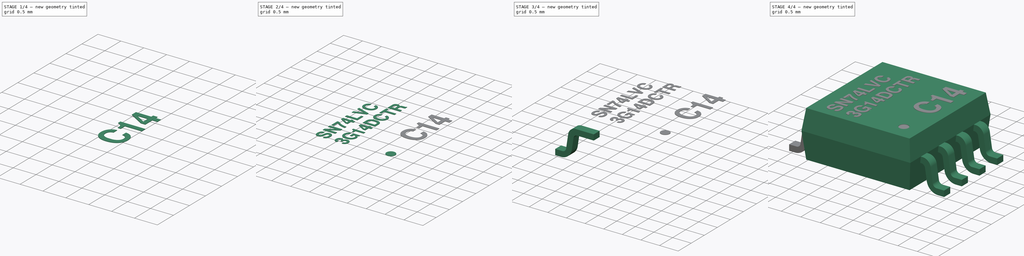
[diagram: build sequence overview — one tinted view per stage of 4, left to right]
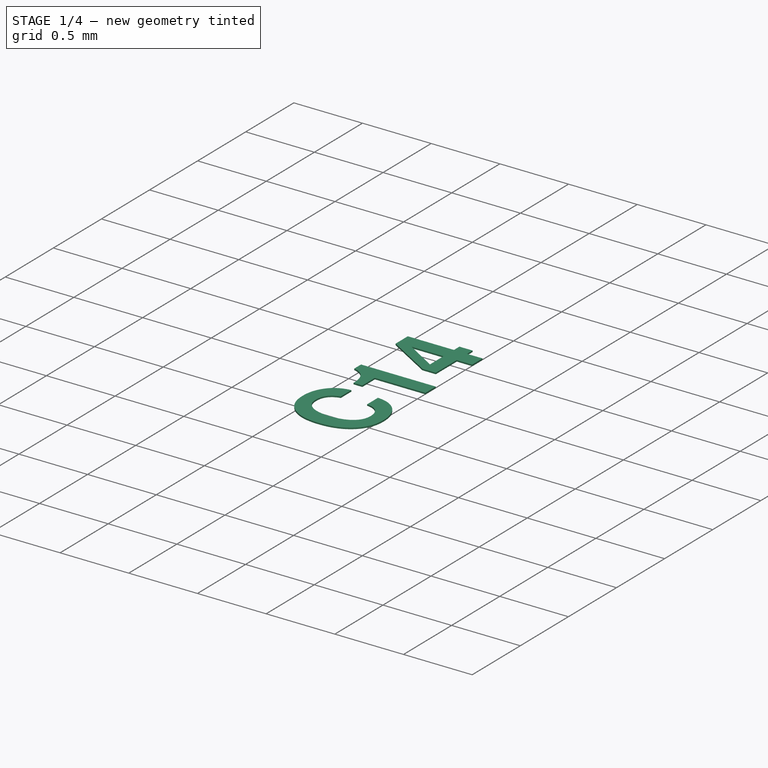
[diagram: stage 1 of 4 — iso view after this stage's code; geometry added in this stage tinted green]
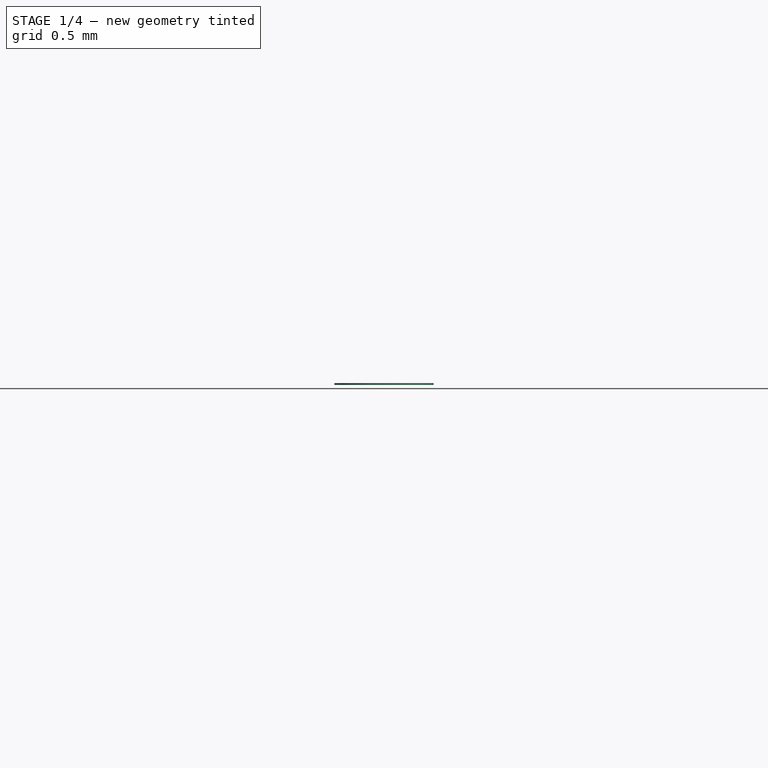
[diagram: stage 1 of 4 — front view after this stage's code; geometry added in this stage tinted green]
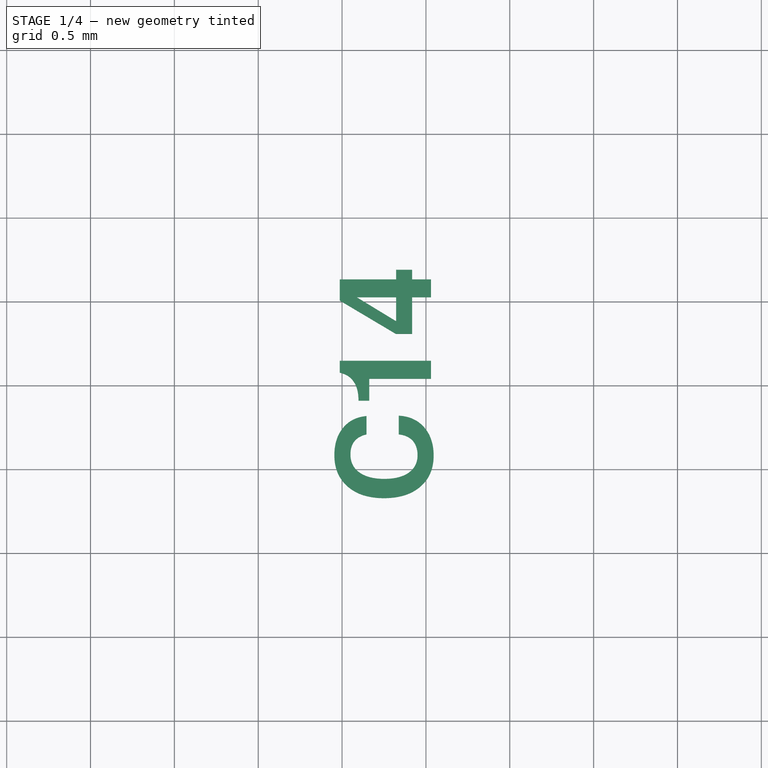
[diagram: stage 1 of 4 — top view after this stage's code; geometry added in this stage tinted green]
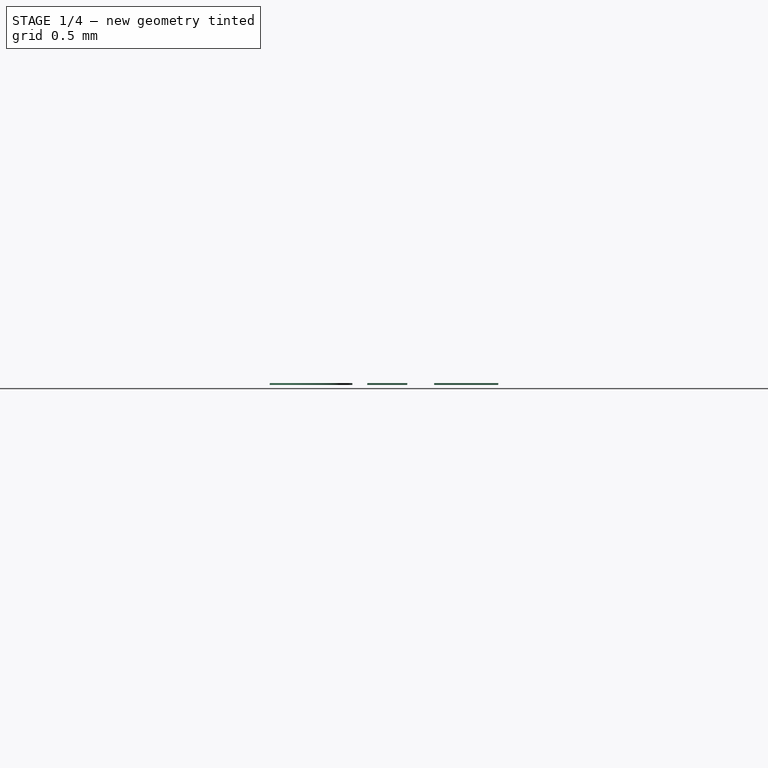
[diagram: stage 1 of 4 — right view after this stage's code; geometry added in this stage tinted green]
FCSTD DOCUMENT  (FreeCAD 0.19R16945 (Git))
Label: Package_DCT_SSOP_8
License: All rights reserved
LicenseURL: http://en.wikipedia.org/wiki/All_rights_reserved
objects: Sketcher::SketchObject×6, PartDesign::Body×3, Part::Part2DObjectPython×3, Part::Extrusion×3, PartDesign::Pad×2, Part::MultiFuse×2, PartDesign::AdditiveLoft×1, Part::Mirroring×1, Part::FeaturePython×1, PartDesign::Pocket×1, PartDesign::ShapeBinder×1
note: 28 computed .brp shape members not serialized (recipe doc carries the construction recipe); baked Part::Feature solids carry a one-line shape summary decoded from their .brp

FEATURE [Sketcher::SketchObject] Sketch  label="Mid"
  AttachmentOffset = pos=(0,0,0.78) rot=(0,0,1;0rad)
  MapMode = 5
  Placement = pos=(0,0,0.78) rot=(0,0,1;0rad)
  Support = -> [XY_Plane]
  expr: AttachmentOffset.Base.z = 0.6 * 1.3
  sketch-geometry (4):
    g0: LineSegment StartX=-1.4 StartY=1.475 StartZ=0 EndX=1.4 EndY=1.475 EndZ=0
    g1: LineSegment StartX=1.4 StartY=1.475 StartZ=0 EndX=1.4 EndY=-1.475 EndZ=0
    g2: LineSegment StartX=1.4 StartY=-1.475 StartZ=0 EndX=-1.4 EndY=-1.475 EndZ=0
    g3: LineSegment StartX=-1.4 StartY=-1.475 StartZ=0 EndX=-1.4 EndY=1.475 EndZ=0
  constraints (11):
    c: Coincident(g0,g1)
    c: Coincident(g1,g2)
    c: Coincident(g2,g3)
    c: Coincident(g3,g0)
    c: Horizontal(g0)
    c: Horizontal(g2)
    c: Vertical(g1)
    c: Vertical(g3)
    c: Symmetric(g1,g0,g-1)
    c: DistanceX(g0,g0) = 2.8
    c: DistanceY(g1,g1) = 2.95
FEATURE [Sketcher::SketchObject] Sketch001  label="Top"
  AttachmentOffset = pos=(0,0,1.3) rot=(0,0,1;0rad)
  MapMode = 5
  Placement = pos=(0,0,1.3) rot=(0,0,1;0rad)
  Support = -> [XY_Plane]
  expr: Constraints[10] = 0.95 * Sketch.Constraints[10]
  expr: Constraints[9] = 0.95 * Sketch.Constraints[9]
  sketch-geometry (4):
    g0: LineSegment StartX=-1.33 StartY=1.40125 StartZ=0 EndX=1.33 EndY=1.40125 EndZ=0
    g1: LineSegment StartX=1.33 StartY=1.40125 StartZ=0 EndX=1.33 EndY=-1.40125 EndZ=0
    g2: LineSegment StartX=1.33 StartY=-1.40125 StartZ=0 EndX=-1.33 EndY=-1.40125 EndZ=0
    g3: LineSegment StartX=-1.33 StartY=-1.40125 StartZ=0 EndX=-1.33 EndY=1.40125 EndZ=0
  constraints (11):
    c: Coincident(g0,g1)
    c: Coincident(g1,g2)
    c: Coincident(g2,g3)
    c: Coincident(g3,g0)
    c: Horizontal(g0)
    c: Horizontal(g2)
    c: Vertical(g1)
    c: Vertical(g3)
    c: Symmetric(g1,g0,g-1)
    c: DistanceX(g0,g0) = 2.66
    c: DistanceY(g1,g1) = 2.8025
FEATURE [Sketcher::SketchObject] Sketch002  label="Bottom"
  AttachmentOffset = pos=(0,0,0.1) rot=(0,0,1;0rad)
  MapMode = 5
  Placement = pos=(0,0,0.1) rot=(0,0,1;0rad)
  Support = -> [XY_Plane]
  expr: Constraints[10] = Sketch001.Constraints[10]
  expr: Constraints[9] = Sketch001.Constraints[9]
  sketch-geometry (4):
    g0: LineSegment StartX=-1.33 StartY=1.40125 StartZ=0 EndX=1.33 EndY=1.40125 EndZ=0
    g1: LineSegment StartX=1.33 StartY=1.40125 StartZ=0 EndX=1.33 EndY=-1.40125 EndZ=0
    g2: LineSegment StartX=1.33 StartY=-1.40125 StartZ=0 EndX=-1.33 EndY=-1.40125 EndZ=0
    g3: LineSegment StartX=-1.33 StartY=-1.40125 StartZ=0 EndX=-1.33 EndY=1.40125 EndZ=0
  constraints (11):
    c: Coincident(g0,g1)
    c: Coincident(g1,g2)
    c: Coincident(g2,g3)
    c: Coincident(g3,g0)
    c: Horizontal(g0)
    c: Horizontal(g2)
    c: Vertical(g1)
    c: Vertical(g3)
    c: Symmetric(g1,g0,g-1)
    c: DistanceX(g0,g0) = 2.66
    c: DistanceY(g1,g1) = 2.8025
FEATURE [PartDesign::AdditiveLoft] AdditiveLoft
  Closed = true
  Profile = -> Sketch001
  Ruled = true
  Sections = -> [Sketch,Sketch002]
FEATURE [Sketcher::SketchObject] Sketch004
  MapMode = 5
  Placement = pos=(0,0,1.3) rot=(0,0,1;0rad)
  Support = -> [AdditiveLoft]
  sketch-geometry (1):
    g0: Circle CenterX=0.887941 CenterY=-0.979996 CenterZ=0 NormalX=0 NormalY=0 NormalZ=1 AngleXU=0 Radius=0.118254
FEATURE [PartDesign::Pocket] Pocket
  BaseFeature = -> AdditiveLoft
  Length = 0.02
  Length2 = 100
  Profile = -> Sketch004
  Type = 0
FEATURE [Part::Part2DObjectPython] ShapeString002  # Draft 2D object (typed FeaturePython)
  AttachmentOffset = pos=(0.3,-1.2,0) rot=(0,0,-1;1.5708rad)
  FontFile = <userpath>/Desktop/GitHub/freecad-projects/00-fonts/FreeSansBold.ttf
  MapMode = 6
  Placement = pos=(1.03,-0.20125,1.3) rot=(0,0,1;1.5708rad)
  Size = 0.3
  String = C14
  Support = -> [Pocket]
  Tracking = 0
FEATURE [Part::Extrusion] Extrude002
  Base = -> ShapeString002
  Dir = (0,0,1)
  DirMode = 2
  FaceMakerClass = Part::FaceMakerBullseye
  LengthFwd = 0.01
  LengthRev = 0
  Solid = false
  Symmetric = false
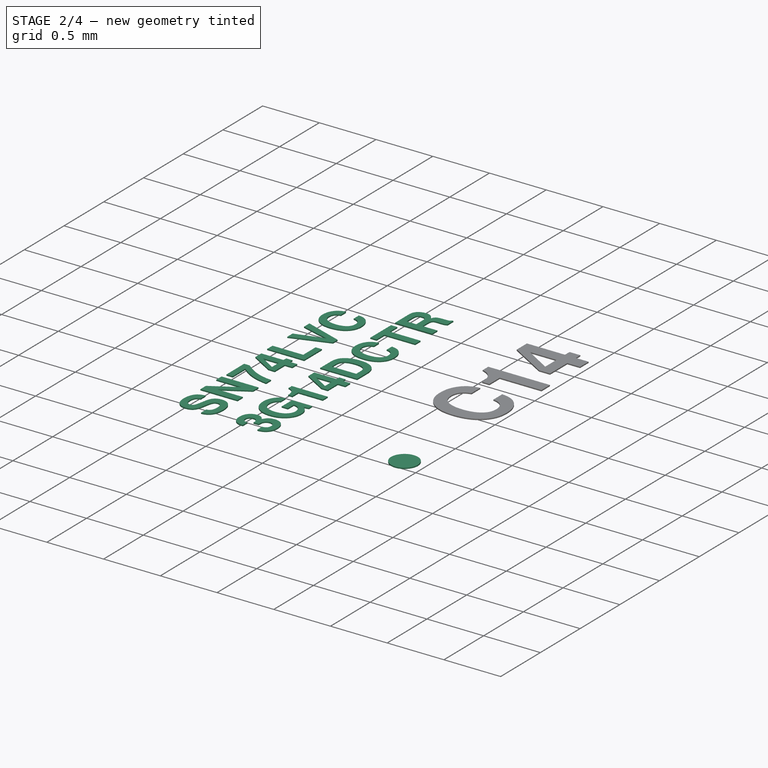
[diagram: stage 2 of 4 — iso view after this stage's code; geometry added in this stage tinted green]
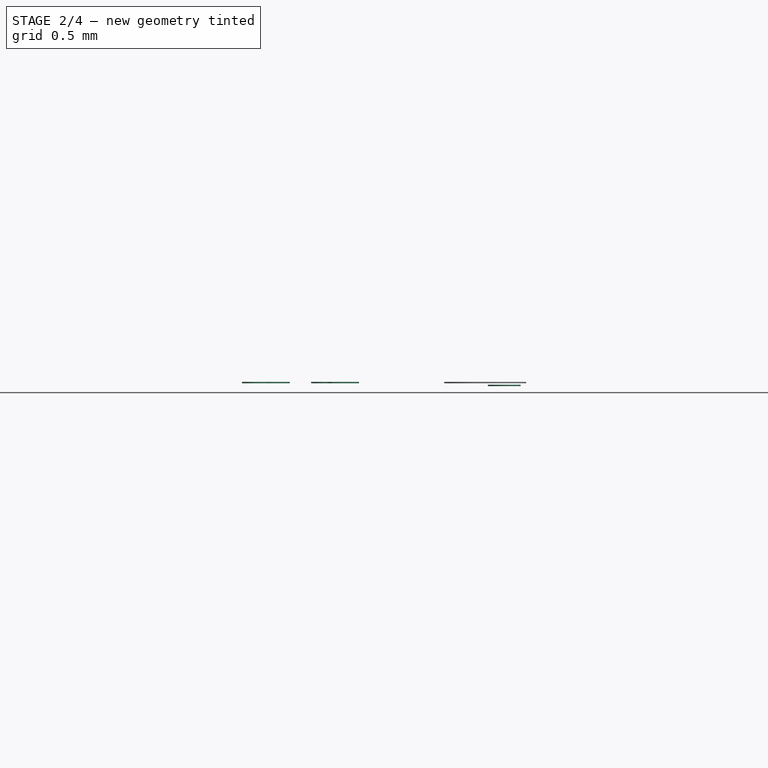
[diagram: stage 2 of 4 — front view after this stage's code; geometry added in this stage tinted green]
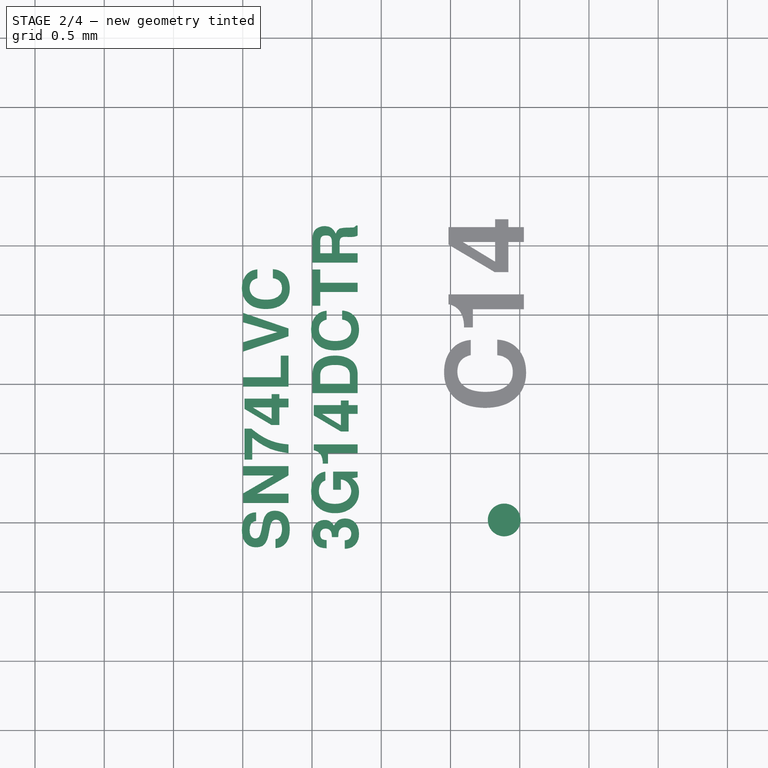
[diagram: stage 2 of 4 — top view after this stage's code; geometry added in this stage tinted green]
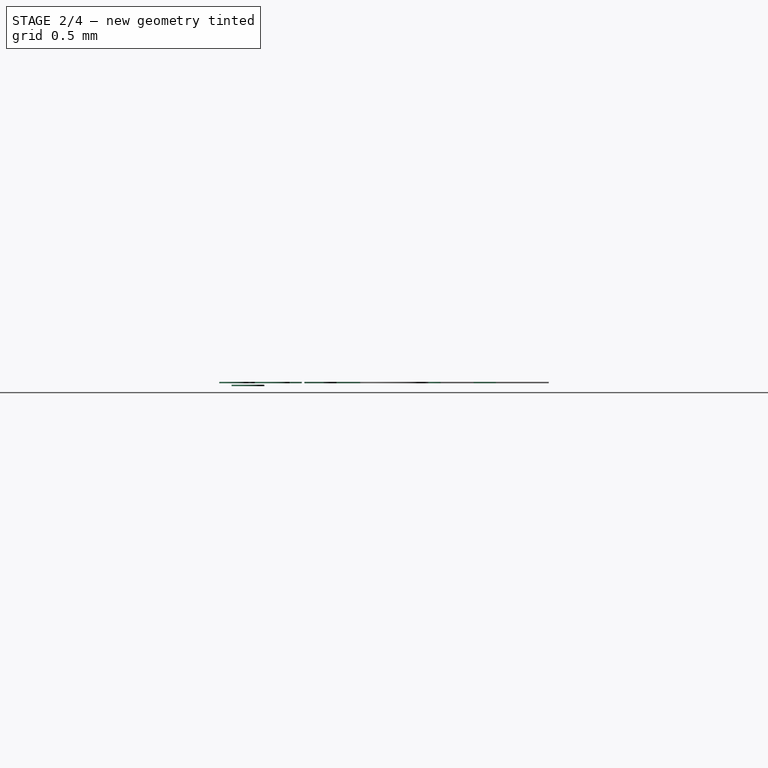
[diagram: stage 2 of 4 — right view after this stage's code; geometry added in this stage tinted green]
FEATURE [PartDesign::Body] Body  label="Package"
  Group = -> [Sketch,Sketch001,Sketch002,AdditiveLoft,Sketch004,Pocket]
  Origin = -> Origin
  Tip = -> Pocket
FEATURE [PartDesign::ShapeBinder] ShapeBinder
  Placement = pos=(0,0,-0.02) rot=(0,0,1;0rad)
  Support = -> [Pocket]
  TraceSupport = false
FEATURE [Sketcher::SketchObject] Sketch005
  ExternalGeometry = -> [ShapeBinder]
  MapMode = 5
  Placement = pos=(0,0,1.28) rot=(0,0,1;0rad)
  Support = -> [ShapeBinder]
  sketch-geometry (1):
    g0: Circle CenterX=0.887941 CenterY=-0.979996 CenterZ=0 NormalX=0 NormalY=0 NormalZ=1 AngleXU=0 Radius=0.118254
  constraints (2):
    c: Coincident(g0,g-3)
    c: Equal(g-3,g0)
FEATURE [PartDesign::Pad] Pad001
  Length = 0.01
  Length2 = 100
  Placement = pos=(0,0,-0.02) rot=(0,0,1;0rad)
  Profile = -> Sketch005
  Type = 0
FEATURE [PartDesign::Body] Body002  label="Marking"
  Group = -> [ShapeBinder,Sketch005,Pad001]
  Origin = -> Origin002
  Tip = -> Pad001
FEATURE [Part::Part2DObjectPython] ShapeString  # Draft 2D object (typed FeaturePython)
  AttachmentOffset = pos=(2,-0.2,0) rot=(0,0,-1;1.5708rad)
  FontFile = <userpath>/Desktop/GitHub/freecad-projects/00-fonts/FreeSansBold.ttf
  MapMode = 6
  Placement = pos=(-0.67,-1.20125,1.3) rot=(0,0,1;1.5708rad)
  Size = 0.175
  String = SN74LVC
  Support = -> [Pocket]
  Tracking = 0
FEATURE [Part::Part2DObjectPython] ShapeString001  # Draft 2D object (typed FeaturePython)
  AttachmentOffset = pos=(1.5,-0.2,0) rot=(0,0,-1;1.5708rad)
  FontFile = <userpath>/Desktop/GitHub/freecad-projects/00-fonts/FreeSansBold.ttf
  MapMode = 6
  Placement = pos=(-0.17,-1.20125,1.3) rot=(0,0,1;1.5708rad)
  Size = 0.175
  String = 3G14DCTR
  Support = -> [Pocket]
  Tracking = 0
FEATURE [Part::Extrusion] Extrude
  Base = -> ShapeString
  Dir = (0,0,1)
  DirMode = 2
  FaceMakerClass = Part::FaceMakerBullseye
  LengthFwd = 0.01
  LengthRev = 0
  Solid = false
  Symmetric = false
FEATURE [Part::Extrusion] Extrude001
  Base = -> ShapeString001
  Dir = (0,0,1)
  DirMode = 2
  FaceMakerClass = Part::FaceMakerBullseye
  LengthFwd = 0.01
  LengthRev = 0
  Solid = false
  Symmetric = false
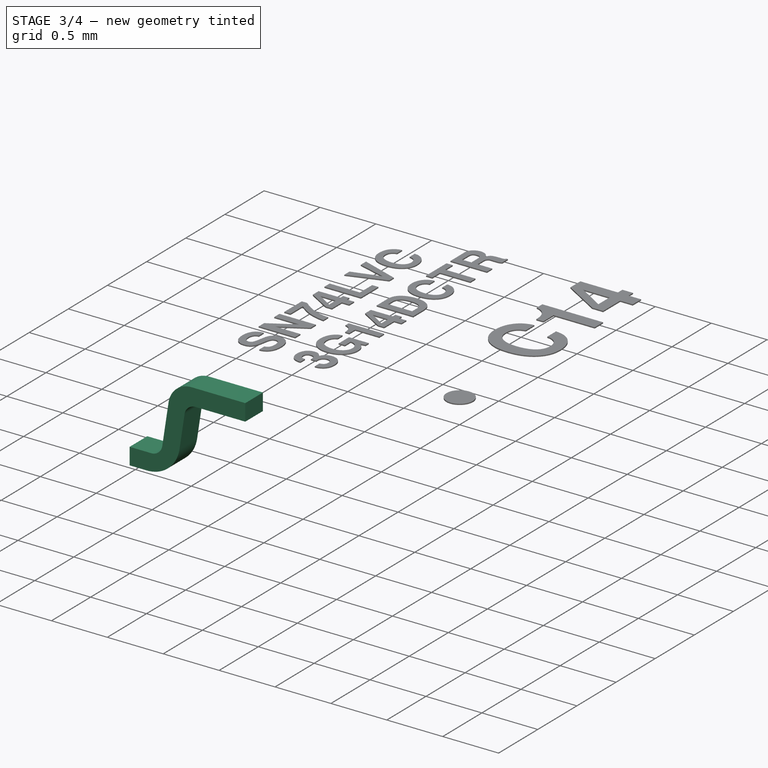
[diagram: stage 3 of 4 — iso view after this stage's code; geometry added in this stage tinted green]
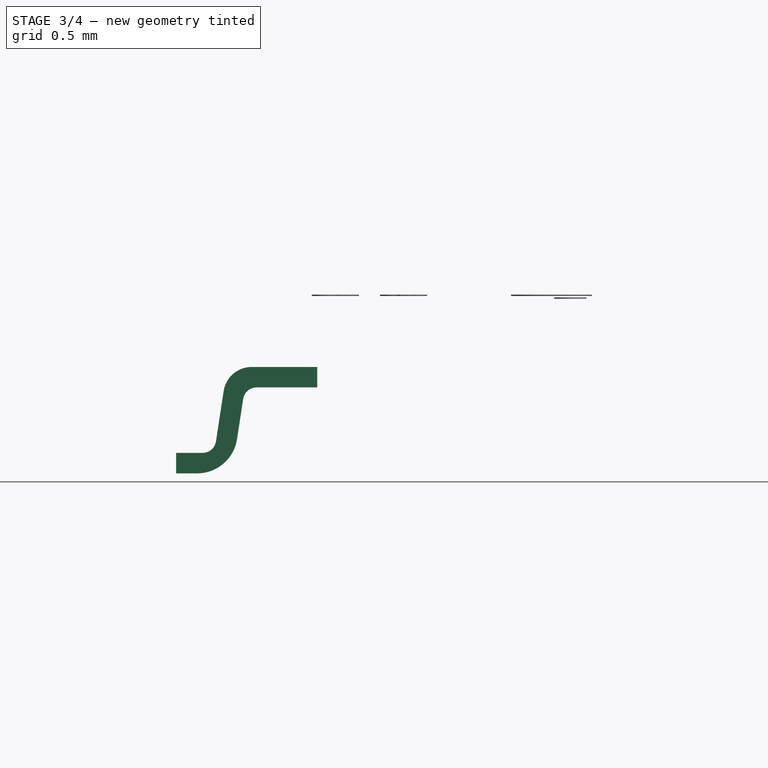
[diagram: stage 3 of 4 — front view after this stage's code; geometry added in this stage tinted green]
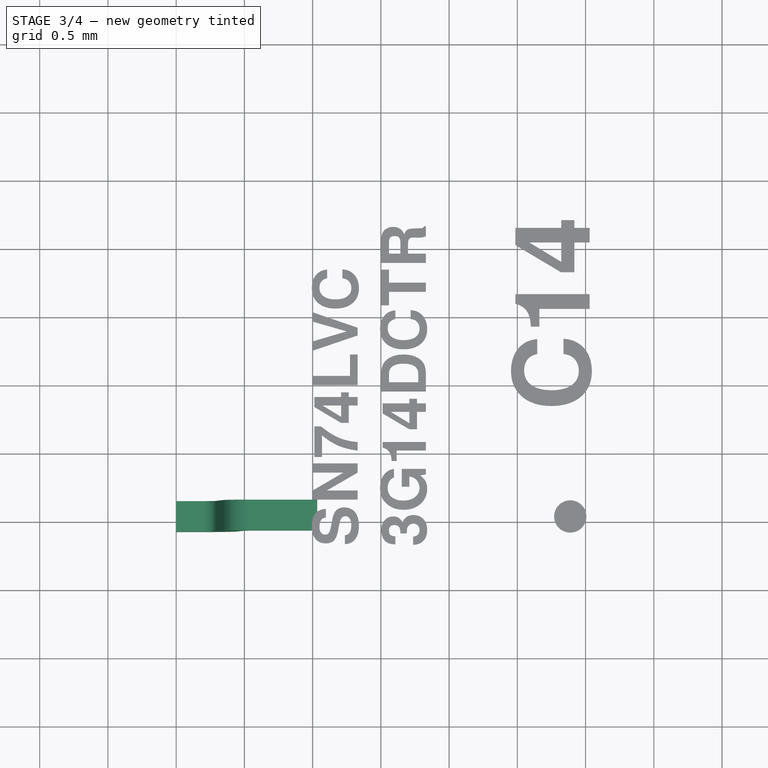
[diagram: stage 3 of 4 — top view after this stage's code; geometry added in this stage tinted green]
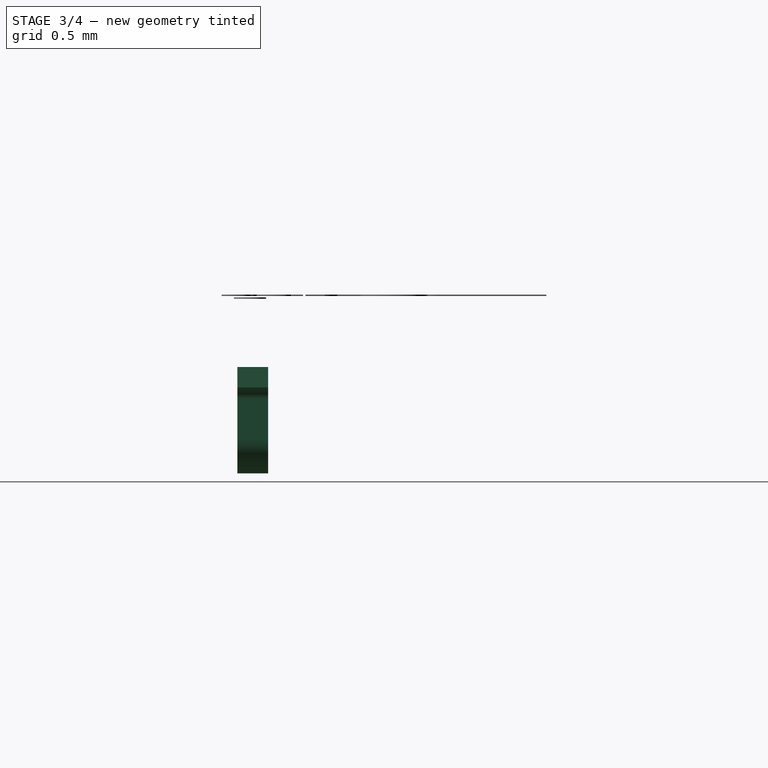
[diagram: stage 3 of 4 — right view after this stage's code; geometry added in this stage tinted green]
FEATURE [Sketcher::SketchObject] Sketch003
  MapMode = 5
  Placement = pos=(0,0,0) rot=(1,0,0;1.5708rad)
  Support = -> [XZ_Plane001]
  expr: Constraints[22] = 0.6 * 1.3
  sketch-geometry (13):
    g0: LineSegment StartX=2 StartY=0 StartZ=0 EndX=2 EndY=0.15 EndZ=0
    g1: LineSegment StartX=2 StartY=0 StartZ=0 EndX=1.84632 EndY=0 EndZ=0
    g2: ArcOfCircle CenterX=1.84632 CenterY=0.295677 CenterZ=0 NormalX=0 NormalY=0 NormalZ=1 AngleXU=0 Radius=0.295677 StartAngle=3.29337 EndAngle=4.71239
    g3: LineSegment StartX=1.55404 StartY=0.250972 StartZ=0 EndX=1.50905 EndY=0.545119 EndZ=0
    g4: ArcOfCircle CenterX=1.4102 CenterY=0.53 CenterZ=0 NormalX=0 NormalY=0 NormalZ=1 AngleXU=0 Radius=0.1 StartAngle=0.151776 EndAngle=1.5708
    g5: LineSegment StartX=1.4102 StartY=0.63 StartZ=0 EndX=0.965719 EndY=0.63 EndZ=0
    g6: LineSegment StartX=0.965719 StartY=0.63 StartZ=0 EndX=0.965719 EndY=0.78 EndZ=0
    g7: LineSegment StartX=0.965719 StartY=0.78 StartZ=0 EndX=1.44601 EndY=0.78 EndZ=0
    g8: ArcOfCircle CenterX=1.44601 CenterY=0.5717 CenterZ=0 NormalX=0 NormalY=0 NormalZ=1 AngleXU=0 Radius=0.2083 StartAngle=0.151776 EndAngle=1.5708
    g9: LineSegment StartX=1.65191 StartY=0.603194 StartZ=0 EndX=1.70825 EndY=0.234881 EndZ=0
    g10: ArcOfCircle CenterX=1.8071 CenterY=0.25 CenterZ=0 NormalX=0 NormalY=0 NormalZ=1 AngleXU=0 Radius=0.1 StartAngle=3.29337 EndAngle=4.71239
    g11: LineSegment StartX=1.8071 StartY=0.15 StartZ=0 EndX=2 EndY=0.15 EndZ=0
    g12: LineSegment [constr] StartX=1.5194 StartY=0.477467 StartZ=0 EndX=1.66767 EndY=0.500146 EndZ=0
  constraints (30):
    c: Vertical(g0)
    c: DistanceX(g-1,g0) = 2
    c: DistanceY(g0,g0) = 0.15
    c: Coincident(g0,g1)
    c: Horizontal(g1)
    c: Tangent(g1,g2) = 1.5708
    c: Tangent(g2,g3) = 1.5708
    c: Tangent(g3,g4) = -1.5708
    c: Tangent(g4,g5) = -1.5708
    c: Coincident(g5,g6)
    c: Vertical(g6)
    c: Coincident(g6,g7)
    c: Horizontal(g7)
    c: Tangent(g7,g8) = 1.5708
    c: Tangent(g8,g9) = 1.5708
    c: Tangent(g9,g10) = -1.5708
    c: Tangent(g10,g11) = -1.5708
    c: Coincident(g11,g0)
    c: Horizontal(g11)
    c: Horizontal(g5)
    c: Parallel(g9,g3)
    c: Equal(g6,g0)
    c: DistanceY(g-1,g6) = 0.78
    c: PointOnObject(g12,g3)
    c: PointOnObject(g12,g9)
    c: Perpendicular(g3,g12)
    c: Equal(g0,g12)
    c: Equal(g10,g4)
    c: Radius(g10) = 0.1
    c: PointOnObject(g0,g-1)
FEATURE [PartDesign::Pad] Pad
  Length = 0.225
  Length2 = 100
  Midplane = true
  Placement = pos=(0,0,0) rot=(1,0,0;1.5708rad)
  Profile = -> Sketch003
  Type = 0
  expr: Length = (0.15 + 0.3) / 2
FEATURE [PartDesign::Body] Body001  label="Lead"
  Group = -> [Sketch003,Pad]
  Origin = -> Origin001
  Placement = pos=(0,-0.975,0) rot=(0,0,1;0rad)
  Tip = -> Pad
  expr: Placement.Base.y = -1.5 * 0.65
FEATURE [Part::Mirroring] Part__Mirroring  label="Lead (Mirror #1)"
  Base = (0,0,0)
  Normal = (1,0,0)
  Placement = pos=(0,-0.96,0) rot=(0,0,1;0rad)
  Source = -> Pad
  expr: Placement.Base.y = -1.5 * 0.64
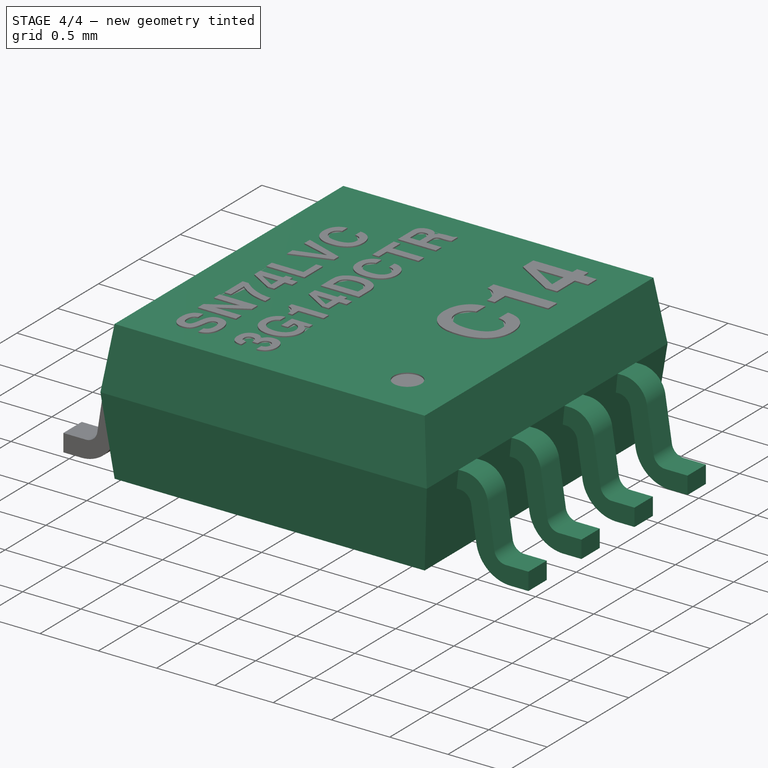
[diagram: stage 4 of 4 — iso view after this stage's code; geometry added in this stage tinted green]
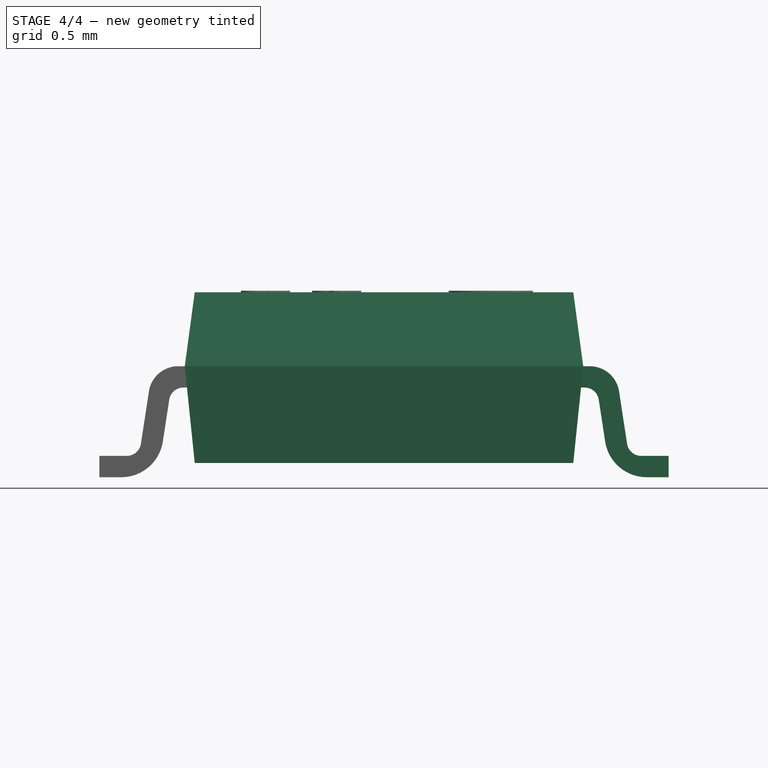
[diagram: stage 4 of 4 — front view after this stage's code; geometry added in this stage tinted green]
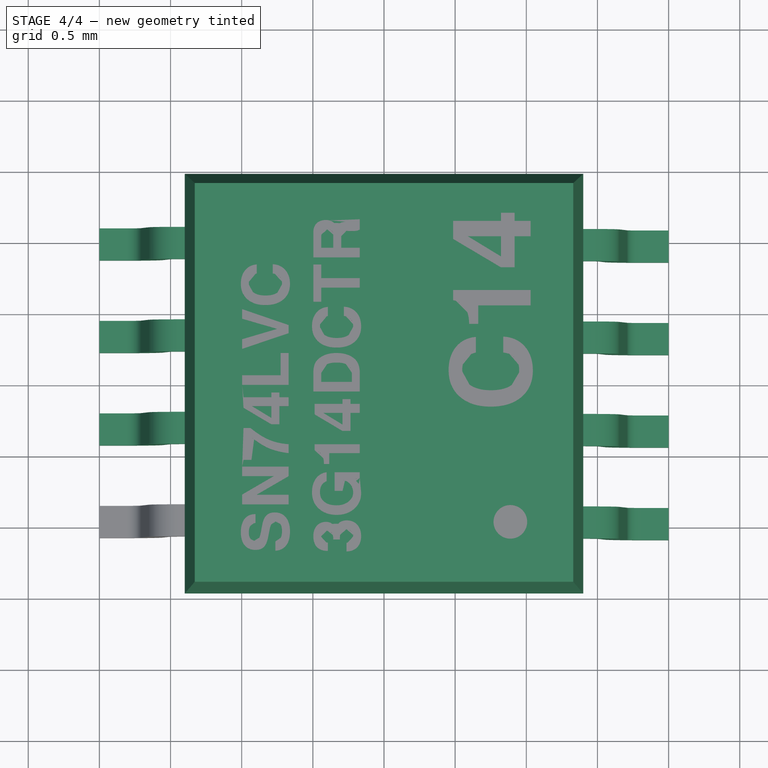
[diagram: stage 4 of 4 — top view after this stage's code; geometry added in this stage tinted green]
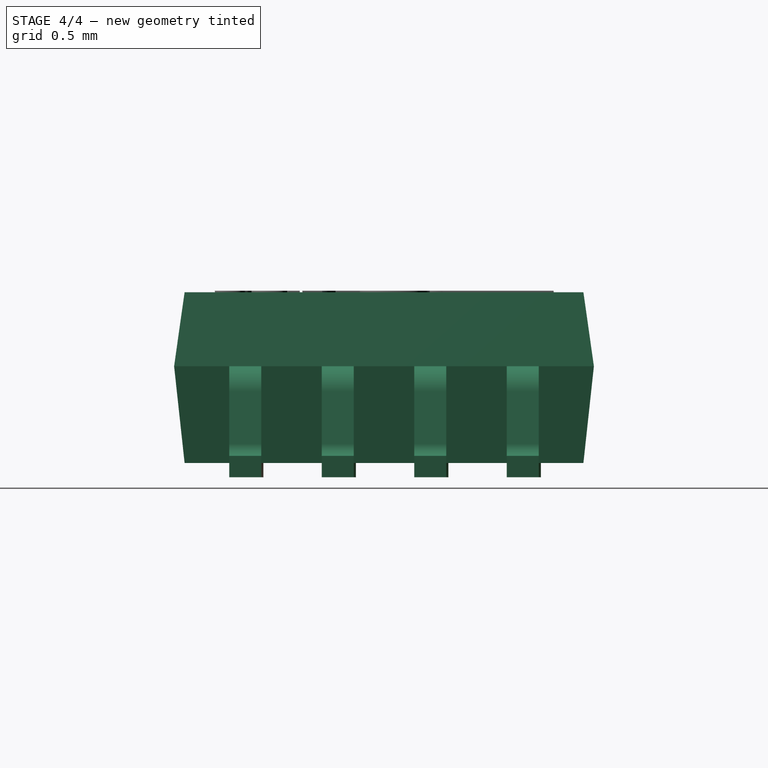
[diagram: stage 4 of 4 — right view after this stage's code; geometry added in this stage tinted green]
FEATURE [Part::MultiFuse] Fusion  label="Lead Fusion"
  Shapes = -> [Part__Mirroring,Body001]
FEATURE [Part::FeaturePython] Array  # Draft array (typed FeaturePython)
  Angle = 360
  ArrayType = 0
  Axis = (0,0,1)
  Base = -> Fusion
  Center = (0,0,0)
  Fuse = false
  IntervalAxis = (0,0,0)
  IntervalX = (1,0,0)
  IntervalY = (0,0.65,0)
  IntervalZ = (0,0,1)
  NumberPolar = 1
  NumberX = 1
  NumberY = 4
  NumberZ = 1
FEATURE [Part::MultiFuse] Fusion001  label="SN74LVC3G14DCTR"
  Shapes = -> [Extrude002,Body,Array,Body002,Extrude,Extrude001]
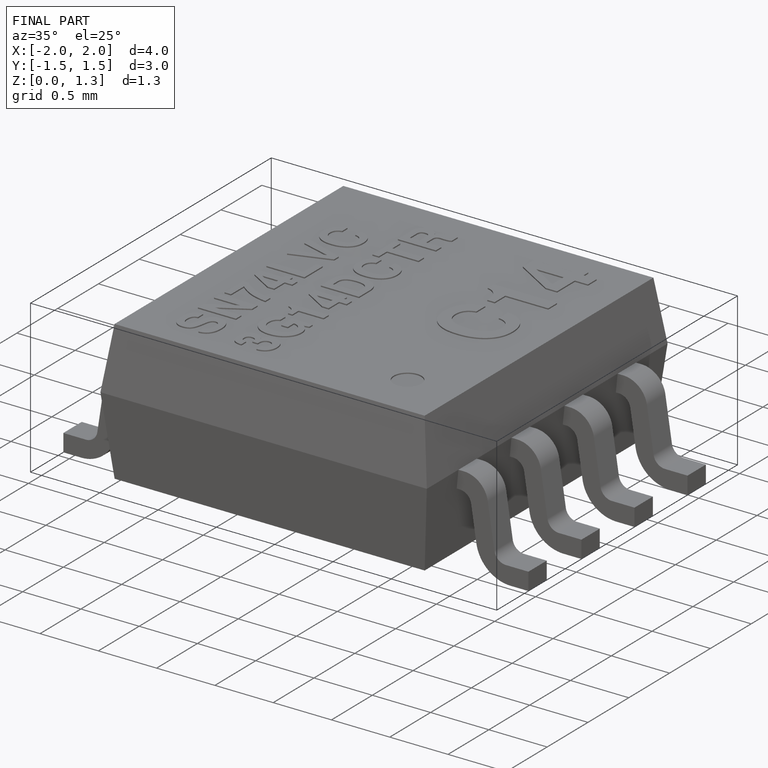
[diagram: finished part — iso view with bounding-box wireframe]
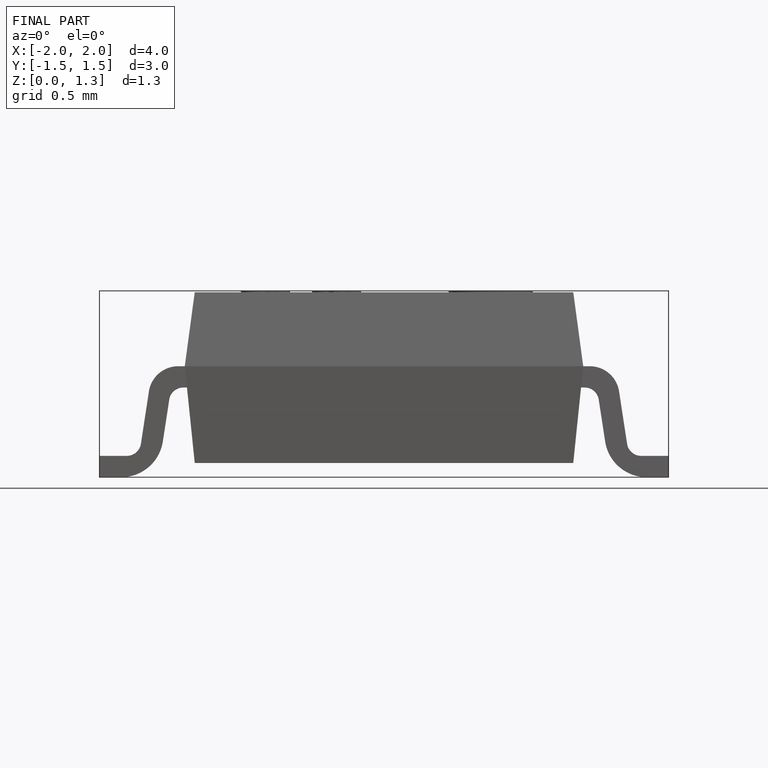
[diagram: finished part — front view with bounding-box wireframe]
